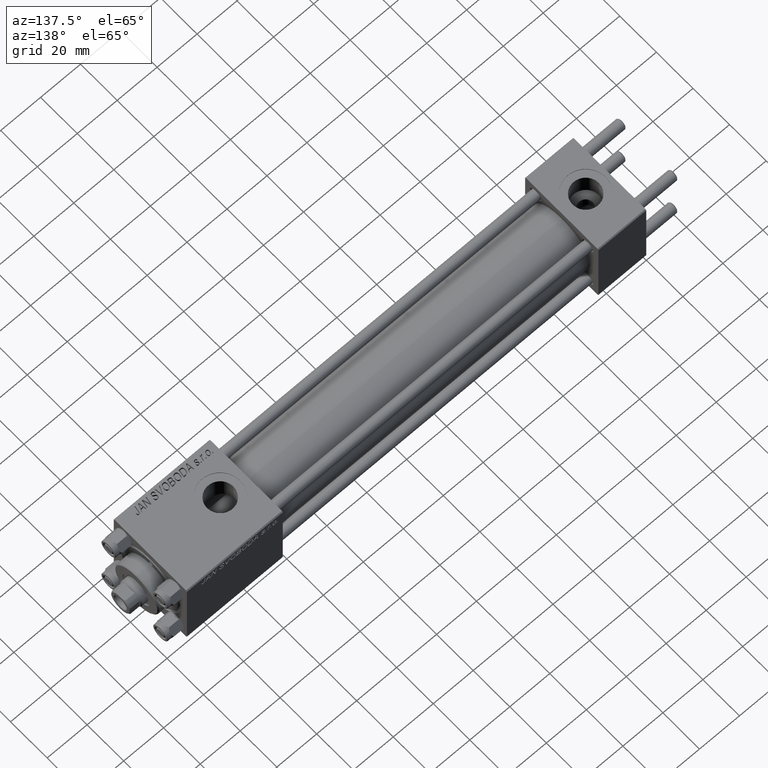
[diagram: clean part render]
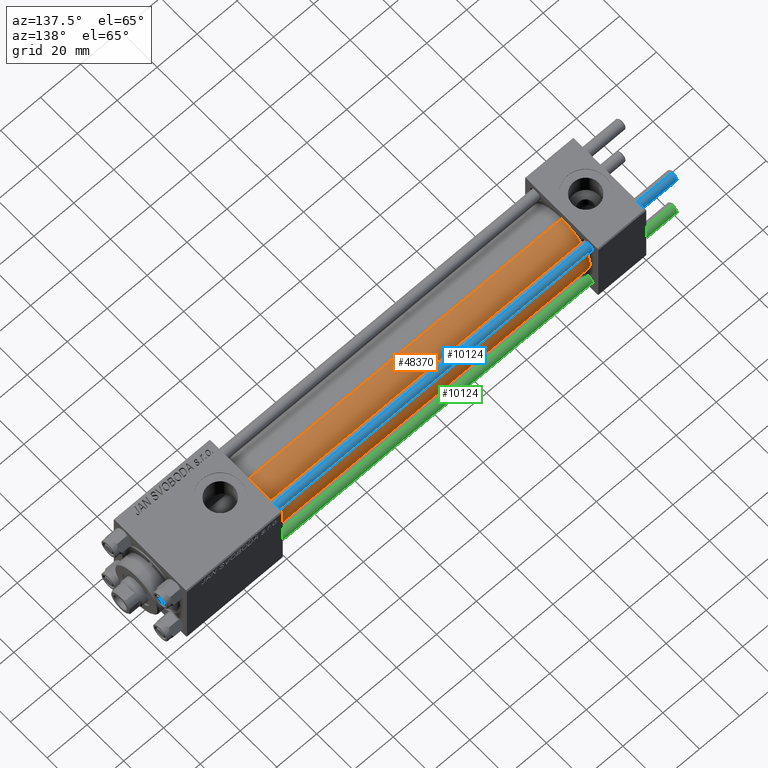
[diagram: same view with three faces highlighted in distinct colors, each labeled with its STEP entity id]
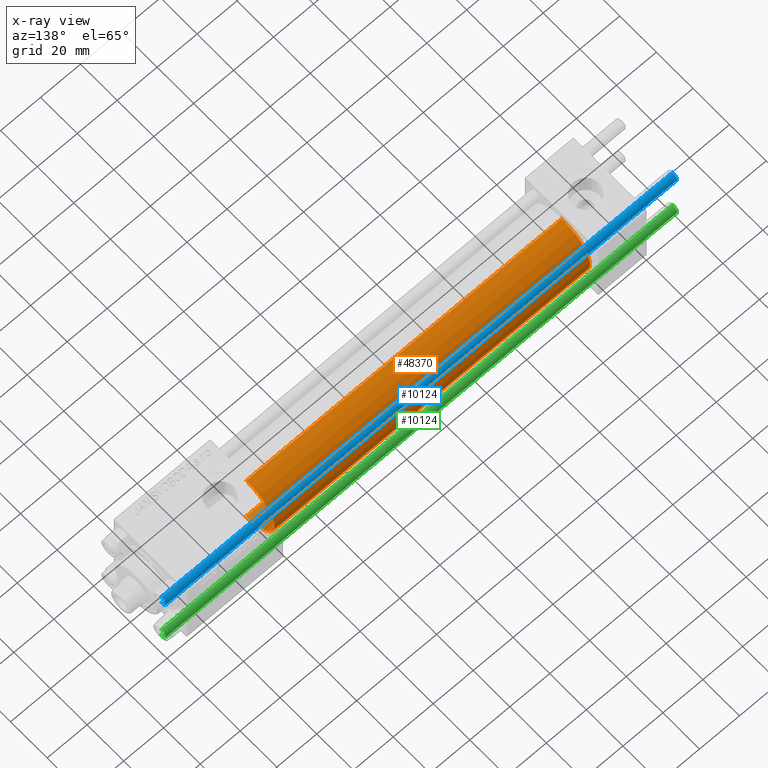
[diagram: x-ray of the same camera — body ghosted, the three highlighted faces saturated]
A machine part, auxiliary view with three faces highlighted in distinct colors.
The next image is the same camera in x-ray (body ghosted, the three faces saturated) — at least one of them is partly hidden behind the body in this view.
Their STEP definitions:

[orange] entity #48370 — the highlighted cylindrical surface (partial cylindrical patch) has radius 15.5 mm, axis along (-1, -0, -0).
#1076 = CARTESIAN_POINT ( 'NONE',  ( 182.0000000000000000, 1.898202538678397557E-15, -15.50000000000000000 ) ) ;
#1364 = VERTEX_POINT ( 'NONE', #11517 ) ;
#3481 = CARTESIAN_POINT ( 'NONE',  ( 182.0000000000000000, 1.898202538678397557E-15, -15.50000000000000000 ) ) ;
#4601 = ORIENTED_EDGE ( 'NONE', *, *, #24034, .F. ) ;
#6141 = DIRECTION ( 'NONE',  ( 0.000000000000000000, 0.000000000000000000, 1.000000000000000000 ) ) ;
#6629 = VERTEX_POINT ( 'NONE', #1076 ) ;
#6818 = EDGE_CURVE ( 'NONE', #6629, #8428, #30226, .T. ) ;
#7394 = VERTEX_POINT ( 'NONE', #12157 ) ;
#8428 = VERTEX_POINT ( 'NONE', #33360 ) ;
#10374 = EDGE_CURVE ( 'NONE', #6629, #1364, #13918, .T. ) ;
#11517 = CARTESIAN_POINT ( 'NONE',  ( 182.0000000000000000, 0.000000000000000000, 15.50000000000000000 ) ) ;
#12157 = CARTESIAN_POINT ( 'NONE',  ( 23.99999999999999289, 0.000000000000000000, 15.50000000000000000 ) ) ;
#13918 = CIRCLE ( 'NONE', #33967, 15.50000000000000000 ) ;
#15512 = ORIENTED_EDGE ( 'NONE', *, *, #31247, .T. ) ;
#17899 = LINE ( 'NONE', #34054, #43974 ) ;
#18860 = DIRECTION ( 'NONE',  ( -1.000000000000000000, -0.000000000000000000, -0.000000000000000000 ) ) ;
#19592 = CARTESIAN_POINT ( 'NONE',  ( 182.0000000000000000, 0.000000000000000000, 0.000000000000000000 ) ) ;
#23129 = DIRECTION ( 'NONE',  ( 0.000000000000000000, 0.000000000000000000, 1.000000000000000000 ) ) ;
#24034 = EDGE_CURVE ( 'NONE', #1364, #7394, #17899, .T. ) ;
#25322 = DIRECTION ( 'NONE',  ( 1.000000000000000000, 0.000000000000000000, 0.000000000000000000 ) ) ;
#25857 = CIRCLE ( 'NONE', #46014, 15.50000000000000000 ) ;
#28107 = CARTESIAN_POINT ( 'NONE',  ( 23.99999999999999289, 0.000000000000000000, 0.000000000000000000 ) ) ;
#29140 = VECTOR ( 'NONE', #18860, 1000.000000000000000 ) ;
#29756 = DIRECTION ( 'NONE',  ( -1.000000000000000000, -0.000000000000000000, -0.000000000000000000 ) ) ;
#30226 = LINE ( 'NONE', #3481, #29140 ) ;
#31200 = FACE_OUTER_BOUND ( 'NONE', #39149, .T. ) ;
#31247 = EDGE_CURVE ( 'NONE', #8428, #7394, #25857, .T. ) ;
#32438 = CARTESIAN_POINT ( 'NONE',  ( 182.0000000000000000, 0.000000000000000000, 0.000000000000000000 ) ) ;
#33045 = AXIS2_PLACEMENT_3D ( 'NONE', #19592, #42318, #23129 ) ;
#33360 = CARTESIAN_POINT ( 'NONE',  ( 23.99999999999999289, 1.898202538678397557E-15, -15.50000000000000000 ) ) ;
#33967 = AXIS2_PLACEMENT_3D ( 'NONE', #32438, #41002, #40510 ) ;
#34054 = CARTESIAN_POINT ( 'NONE',  ( 182.0000000000000000, 0.000000000000000000, 15.50000000000000000 ) ) ;
#39149 = EDGE_LOOP ( 'NONE', ( #43612, #48175, #15512, #4601 ) ) ;
#40510 = DIRECTION ( 'NONE',  ( 0.000000000000000000, 0.000000000000000000, -1.000000000000000000 ) ) ;
#41002 = DIRECTION ( 'NONE',  ( 1.000000000000000000, 0.000000000000000000, 0.000000000000000000 ) ) ;
#42318 = DIRECTION ( 'NONE',  ( -1.000000000000000000, -0.000000000000000000, -0.000000000000000000 ) ) ;
#43060 = CYLINDRICAL_SURFACE ( 'NONE', #33045, 15.50000000000000000 ) ;
#43612 = ORIENTED_EDGE ( 'NONE', *, *, #10374, .F. ) ;
#43974 = VECTOR ( 'NONE', #29756, 1000.000000000000000 ) ;
#46014 = AXIS2_PLACEMENT_3D ( 'NONE', #28107, #25322, #6141 ) ;
#48175 = ORIENTED_EDGE ( 'NONE', *, *, #6818, .T. ) ;
#48370 = ADVANCED_FACE ( 'NONE', ( #31200 ), #43060, .T. ) ;

[blue] entity #10124 — the highlighted cylindrical surface (edge-blend (fillet) strip) has radius 2.5 mm, axis along (-1, -0, -0).
#636 = EDGE_CURVE ( 'NONE', #48988, #4363, #49836, .T. ) ;
#3473 = CARTESIAN_POINT ( 'NONE',  ( -2.500000000000000000, 0.000000000000000000, 257.0000000000000000 ) ) ;
#3754 = LINE ( 'NONE', #7537, #43727 ) ;
#4363 = VERTEX_POINT ( 'NONE', #22674 ) ;
#6457 = DIRECTION ( 'NONE',  ( -0.000000000000000000, -0.000000000000000000, -1.000000000000000000 ) ) ;
#6715 = CIRCLE ( 'NONE', #26856, 2.500000000000000000 ) ;
#6879 = ORIENTED_EDGE ( 'NONE', *, *, #14902, .T. ) ;
#7537 = CARTESIAN_POINT ( 'NONE',  ( 2.500000000000000000, 3.061616997868383141E-16, 257.0000000000000000 ) ) ;
#7747 = DIRECTION ( 'NONE',  ( -0.000000000000000000, -0.000000000000000000, -1.000000000000000000 ) ) ;
#10124 = ADVANCED_FACE ( 'NONE', ( #47456 ), #24473, .T. ) ;
#10679 = ORIENTED_EDGE ( 'NONE', *, *, #12982, .T. ) ;
#12808 = EDGE_LOOP ( 'NONE', ( #22473, #10679, #6879, #38421 ) ) ;
#12923 = VECTOR ( 'NONE', #7747, 1000.000000000000000 ) ;
#12982 = EDGE_CURVE ( 'NONE', #4363, #37044, #3754, .T. ) ;
#13331 = CARTESIAN_POINT ( 'NONE',  ( -2.500000000000000000, 0.000000000000000000, 256.5000000000000000 ) ) ;
#14902 = EDGE_CURVE ( 'NONE', #37044, #20910, #6715, .T. ) ;
#16377 = DIRECTION ( 'NONE',  ( 1.000000000000000000, 0.000000000000000000, 0.000000000000000000 ) ) ;
#16626 = DIRECTION ( 'NONE',  ( 0.000000000000000000, 0.000000000000000000, -1.000000000000000000 ) ) ;
#16641 = CARTESIAN_POINT ( 'NONE',  ( 0.000000000000000000, 0.000000000000000000, 257.0000000000000000 ) ) ;
#16873 = CARTESIAN_POINT ( 'NONE',  ( 0.000000000000000000, 0.000000000000000000, 256.5000000000000000 ) ) ;
#20910 = VERTEX_POINT ( 'NONE', #32937 ) ;
#22473 = ORIENTED_EDGE ( 'NONE', *, *, #636, .T. ) ;
#22674 = CARTESIAN_POINT ( 'NONE',  ( 2.500000000000000000, 3.061616997868383141E-16, 256.5000000000000000 ) ) ;
#23450 = DIRECTION ( 'NONE',  ( 1.000000000000000000, 0.000000000000000000, 0.000000000000000000 ) ) ;
#24473 = CYLINDRICAL_SURFACE ( 'NONE', #40416, 2.500000000000000000 ) ;
#26856 = AXIS2_PLACEMENT_3D ( 'NONE', #39109, #32033, #23450 ) ;
#29447 = DIRECTION ( 'NONE',  ( -1.000000000000000000, 0.000000000000000000, 0.000000000000000000 ) ) ;
#32033 = DIRECTION ( 'NONE',  ( -0.000000000000000000, -0.000000000000000000, 1.000000000000000000 ) ) ;
#32937 = CARTESIAN_POINT ( 'NONE',  ( -2.500000000000000000, 0.000000000000000000, 0.5000000000000004441 ) ) ;
#34261 = LINE ( 'NONE', #3473, #12923 ) ;
#37044 = VERTEX_POINT ( 'NONE', #49866 ) ;
#38421 = ORIENTED_EDGE ( 'NONE', *, *, #49155, .F. ) ;
#39109 = CARTESIAN_POINT ( 'NONE',  ( 0.000000000000000000, 0.000000000000000000, 0.5000000000000004441 ) ) ;
#40416 = AXIS2_PLACEMENT_3D ( 'NONE', #16641, #6457, #29447 ) ;
#40966 = AXIS2_PLACEMENT_3D ( 'NONE', #16873, #16626, #16377 ) ;
#43104 = DIRECTION ( 'NONE',  ( -0.000000000000000000, -0.000000000000000000, -1.000000000000000000 ) ) ;
#43727 = VECTOR ( 'NONE', #43104, 1000.000000000000000 ) ;
#47456 = FACE_OUTER_BOUND ( 'NONE', #12808, .T. ) ;
#48988 = VERTEX_POINT ( 'NONE', #13331 ) ;
#49155 = EDGE_CURVE ( 'NONE', #48988, #20910, #34261, .T. ) ;
#49836 = CIRCLE ( 'NONE', #40966, 2.500000000000000000 ) ;
#49866 = CARTESIAN_POINT ( 'NONE',  ( 2.500000000000000000, 3.061616997868383141E-16, 0.5000000000000004441 ) ) ;

[green] entity #10124 — the highlighted cylindrical surface (edge-blend (fillet) strip) has radius 2.5 mm, axis along (1, 0, -0).
#636 = EDGE_CURVE ( 'NONE', #48988, #4363, #49836, .T. ) ;
#3473 = CARTESIAN_POINT ( 'NONE',  ( -2.500000000000000000, 0.000000000000000000, 257.0000000000000000 ) ) ;
#3754 = LINE ( 'NONE', #7537, #43727 ) ;
#4363 = VERTEX_POINT ( 'NONE', #22674 ) ;
#6457 = DIRECTION ( 'NONE',  ( -0.000000000000000000, -0.000000000000000000, -1.000000000000000000 ) ) ;
#6715 = CIRCLE ( 'NONE', #26856, 2.500000000000000000 ) ;
#6879 = ORIENTED_EDGE ( 'NONE', *, *, #14902, .T. ) ;
#7537 = CARTESIAN_POINT ( 'NONE',  ( 2.500000000000000000, 3.061616997868383141E-16, 257.0000000000000000 ) ) ;
#7747 = DIRECTION ( 'NONE',  ( -0.000000000000000000, -0.000000000000000000, -1.000000000000000000 ) ) ;
#10124 = ADVANCED_FACE ( 'NONE', ( #47456 ), #24473, .T. ) ;
#10679 = ORIENTED_EDGE ( 'NONE', *, *, #12982, .T. ) ;
#12808 = EDGE_LOOP ( 'NONE', ( #22473, #10679, #6879, #38421 ) ) ;
#12923 = VECTOR ( 'NONE', #7747, 1000.000000000000000 ) ;
#12982 = EDGE_CURVE ( 'NONE', #4363, #37044, #3754, .T. ) ;
#13331 = CARTESIAN_POINT ( 'NONE',  ( -2.500000000000000000, 0.000000000000000000, 256.5000000000000000 ) ) ;
#14902 = EDGE_CURVE ( 'NONE', #37044, #20910, #6715, .T. ) ;
#16377 = DIRECTION ( 'NONE',  ( 1.000000000000000000, 0.000000000000000000, 0.000000000000000000 ) ) ;
#16626 = DIRECTION ( 'NONE',  ( 0.000000000000000000, 0.000000000000000000, -1.000000000000000000 ) ) ;
#16641 = CARTESIAN_POINT ( 'NONE',  ( 0.000000000000000000, 0.000000000000000000, 257.0000000000000000 ) ) ;
#16873 = CARTESIAN_POINT ( 'NONE',  ( 0.000000000000000000, 0.000000000000000000, 256.5000000000000000 ) ) ;
#20910 = VERTEX_POINT ( 'NONE', #32937 ) ;
#22473 = ORIENTED_EDGE ( 'NONE', *, *, #636, .T. ) ;
#22674 = CARTESIAN_POINT ( 'NONE',  ( 2.500000000000000000, 3.061616997868383141E-16, 256.5000000000000000 ) ) ;
#23450 = DIRECTION ( 'NONE',  ( 1.000000000000000000, 0.000000000000000000, 0.000000000000000000 ) ) ;
#24473 = CYLINDRICAL_SURFACE ( 'NONE', #40416, 2.500000000000000000 ) ;
#26856 = AXIS2_PLACEMENT_3D ( 'NONE', #39109, #32033, #23450 ) ;
#29447 = DIRECTION ( 'NONE',  ( -1.000000000000000000, 0.000000000000000000, 0.000000000000000000 ) ) ;
#32033 = DIRECTION ( 'NONE',  ( -0.000000000000000000, -0.000000000000000000, 1.000000000000000000 ) ) ;
#32937 = CARTESIAN_POINT ( 'NONE',  ( -2.500000000000000000, 0.000000000000000000, 0.5000000000000004441 ) ) ;
#34261 = LINE ( 'NONE', #3473, #12923 ) ;
#37044 = VERTEX_POINT ( 'NONE', #49866 ) ;
#38421 = ORIENTED_EDGE ( 'NONE', *, *, #49155, .F. ) ;
#39109 = CARTESIAN_POINT ( 'NONE',  ( 0.000000000000000000, 0.000000000000000000, 0.5000000000000004441 ) ) ;
#40416 = AXIS2_PLACEMENT_3D ( 'NONE', #16641, #6457, #29447 ) ;
#40966 = AXIS2_PLACEMENT_3D ( 'NONE', #16873, #16626, #16377 ) ;
#43104 = DIRECTION ( 'NONE',  ( -0.000000000000000000, -0.000000000000000000, -1.000000000000000000 ) ) ;
#43727 = VECTOR ( 'NONE', #43104, 1000.000000000000000 ) ;
#47456 = FACE_OUTER_BOUND ( 'NONE', #12808, .T. ) ;
#48988 = VERTEX_POINT ( 'NONE', #13331 ) ;
#49155 = EDGE_CURVE ( 'NONE', #48988, #20910, #34261, .T. ) ;
#49836 = CIRCLE ( 'NONE', #40966, 2.500000000000000000 ) ;
#49866 = CARTESIAN_POINT ( 'NONE',  ( 2.500000000000000000, 3.061616997868383141E-16, 0.5000000000000004441 ) ) ;